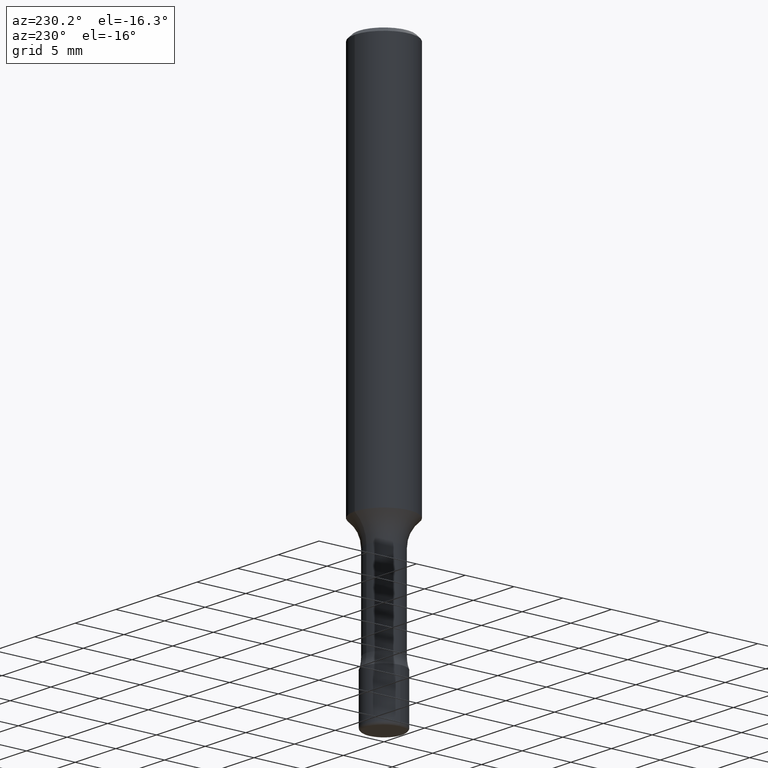
[diagram: clean part render]
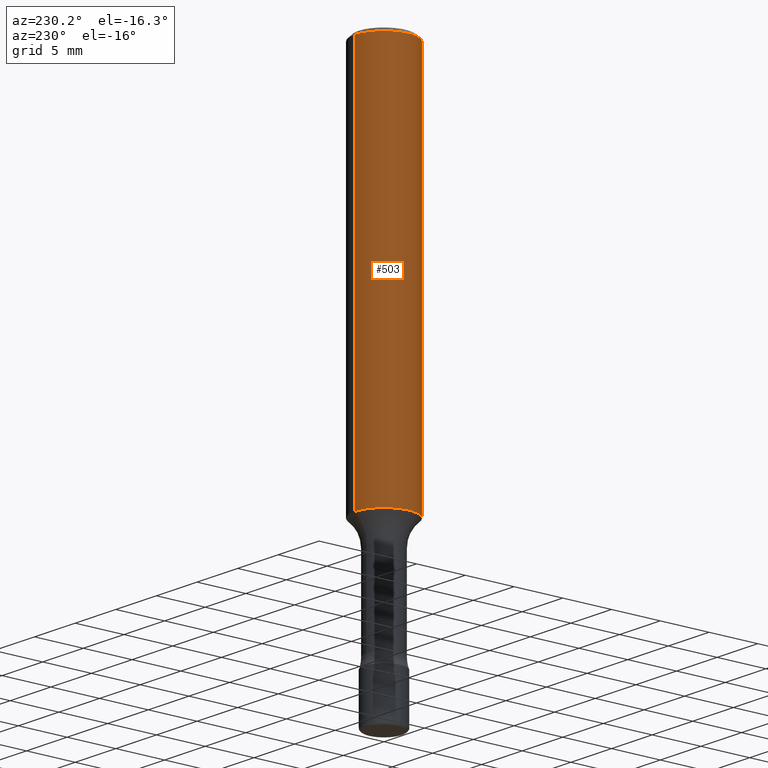
[diagram: same view with one face highlighted and labeled with its STEP entity id]
A machine part, auxiliary view. The second image highlights one B-rep face of the part: STEP entity #503.
In plain terms, the highlighted cylindrical surface (partial cylindrical patch) has radius 2.9997 mm, axis along (-0, 0, 1).
Its self-contained STEP definition (entity closure, byte-faithful):
#35 = AXIS2_PLACEMENT_3D ( 'NONE', #257, #219, #429 ) ;
#42 = AXIS2_PLACEMENT_3D ( 'NONE', #333, #487, #368 ) ;
#64 = DIRECTION ( 'NONE',  ( -6.982962677686265922E-15, -1.000000000000000000, 3.487819265831411744E-15 ) ) ;
#83 = LINE ( 'NONE', #408, #379 ) ;
#89 = AXIS2_PLACEMENT_3D ( 'NONE', #145, #102, #64 ) ;
#92 = DIRECTION ( 'NONE',  ( -2.444888709007337080E-29, 3.492312071018835321E-15, 1.000000000000000000 ) ) ;
#96 = VECTOR ( 'NONE', #92, 39.37007874015748143 ) ;
#98 = ORIENTED_EDGE ( 'NONE', *, *, #424, .T. ) ;
#102 = DIRECTION ( 'NONE',  ( -2.444888709007337080E-29, 3.492312071018835321E-15, 1.000000000000000000 ) ) ;
#118 = VERTEX_POINT ( 'NONE', #275 ) ;
#145 = CARTESIAN_POINT ( 'NONE',  ( 3.667333063511079398E-31, -5.238468106528358615E-17, -0.01500000000000030302 ) ) ;
#160 = VERTEX_POINT ( 'NONE', #321 ) ;
#166 = CYLINDRICAL_SURFACE ( 'NONE', #42, 0.1180999999999999966 ) ;
#168 = CIRCLE ( 'NONE', #35, 0.1180999999999999966 ) ;
#210 = CARTESIAN_POINT ( 'NONE',  ( -8.246878922347479668E-16, -0.1180999999999999966, 8.905154544785705862E-16 ) ) ;
#219 = DIRECTION ( 'NONE',  ( -2.444888709007337080E-29, 3.492312071018835321E-15, 1.000000000000000000 ) ) ;
#225 = CARTESIAN_POINT ( 'NONE',  ( 8.246878922347483612E-16, 0.1180999999999999411, -0.01500000000000071589 ) ) ;
#246 = CARTESIAN_POINT ( 'NONE',  ( -8.102248135368174406E-16, -0.1181000000000000522, -0.01499999999999989189 ) ) ;
#257 = CARTESIAN_POINT ( 'NONE',  ( 3.803616507154480473E-29, -5.433137219098765341E-15, -1.555742187013006372 ) ) ;
#271 = EDGE_CURVE ( 'NONE', #360, #469, #273, .T. ) ;
#273 = CIRCLE ( 'NONE', #89, 0.1180999999999999966 ) ;
#275 = CARTESIAN_POINT ( 'NONE',  ( -8.246878922347099042E-16, -0.1181000000000054229, -1.555742187013005928 ) ) ;
#289 = LINE ( 'NONE', #210, #96 ) ;
#319 = EDGE_CURVE ( 'NONE', #160, #118, #168, .T. ) ;
#321 = CARTESIAN_POINT ( 'NONE',  ( 8.391509709327163582E-16, 0.1180999999999945704, -1.555742187013007038 ) ) ;
#323 = ORIENTED_EDGE ( 'NONE', *, *, #271, .F. ) ;
#333 = CARTESIAN_POINT ( 'NONE',  ( -1.169113584055446105E-44, 1.669184350826100908E-30, 4.780733988912460139E-16 ) ) ;
#360 = VERTEX_POINT ( 'NONE', #225 ) ;
#368 = DIRECTION ( 'NONE',  ( -6.982962677686265922E-15, -1.000000000000000000, 3.492312071018835716E-15 ) ) ;
#379 = VECTOR ( 'NONE', #416, 39.37007874015748143 ) ;
#408 = CARTESIAN_POINT ( 'NONE',  ( 8.391509709326781971E-16, 0.1180999999999999966, 6.563134330392160184E-17 ) ) ;
#416 = DIRECTION ( 'NONE',  ( -2.444888709007337080E-29, 3.492312071018835321E-15, 1.000000000000000000 ) ) ;
#418 = FACE_OUTER_BOUND ( 'NONE', #449, .T. ) ;
#424 = EDGE_CURVE ( 'NONE', #118, #469, #289, .T. ) ;
#429 = DIRECTION ( 'NONE',  ( -6.982962677686265922E-15, -1.000000000000000000, 4.626330217890369336E-15 ) ) ;
#449 = EDGE_LOOP ( 'NONE', ( #499, #520, #98, #323 ) ) ;
#469 = VERTEX_POINT ( 'NONE', #246 ) ;
#487 = DIRECTION ( 'NONE',  ( -2.444888709007337080E-29, 3.492312071018835321E-15, 1.000000000000000000 ) ) ;
#499 = ORIENTED_EDGE ( 'NONE', *, *, #510, .F. ) ;
#503 = ADVANCED_FACE ( 'NONE', ( #418 ), #166, .T. ) ;
#510 = EDGE_CURVE ( 'NONE', #160, #360, #83, .T. ) ;
#520 = ORIENTED_EDGE ( 'NONE', *, *, #319, .T. ) ;